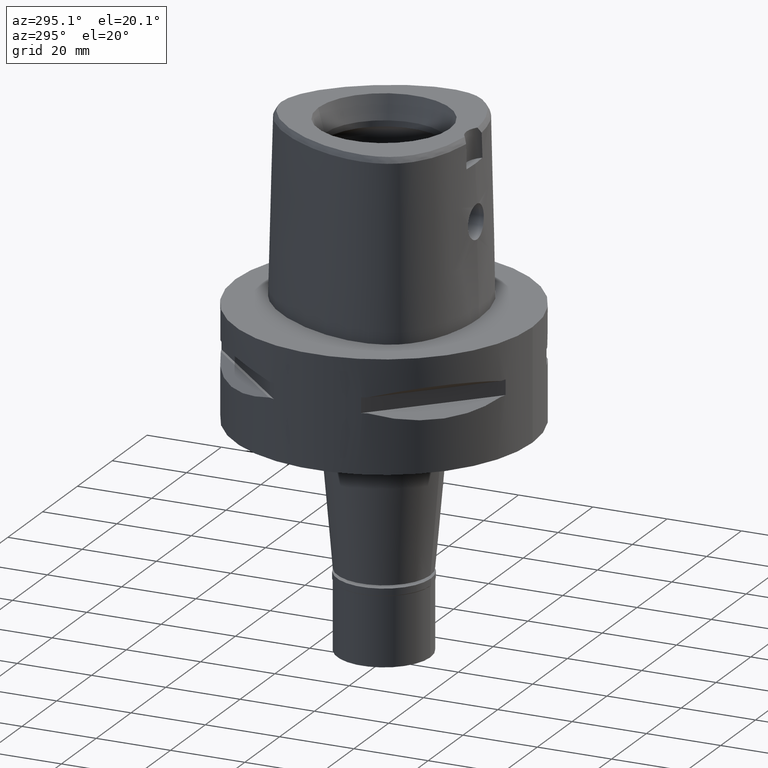
[diagram: clean part render]
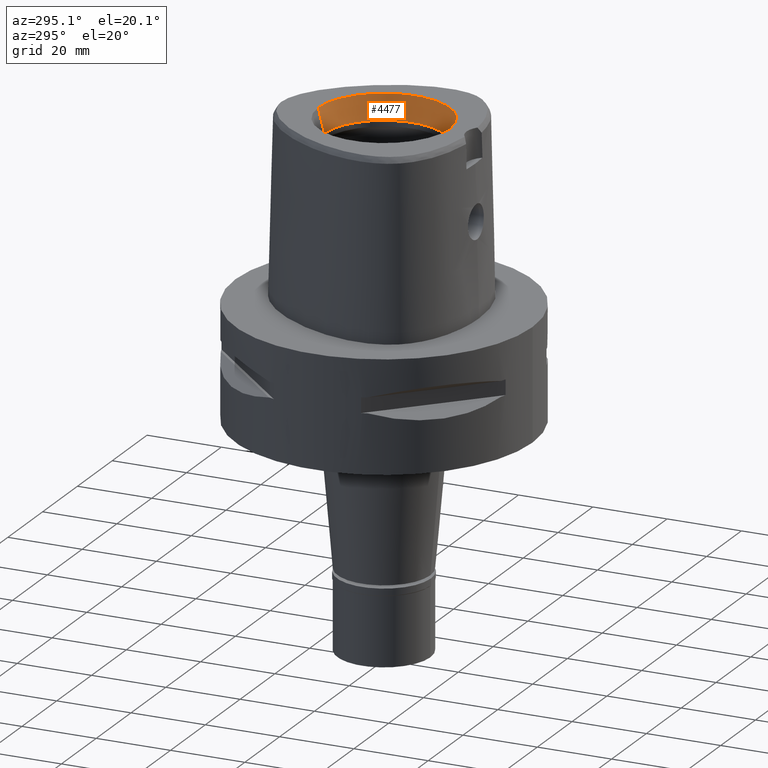
[diagram: same view with one face highlighted and labeled with its STEP entity id]
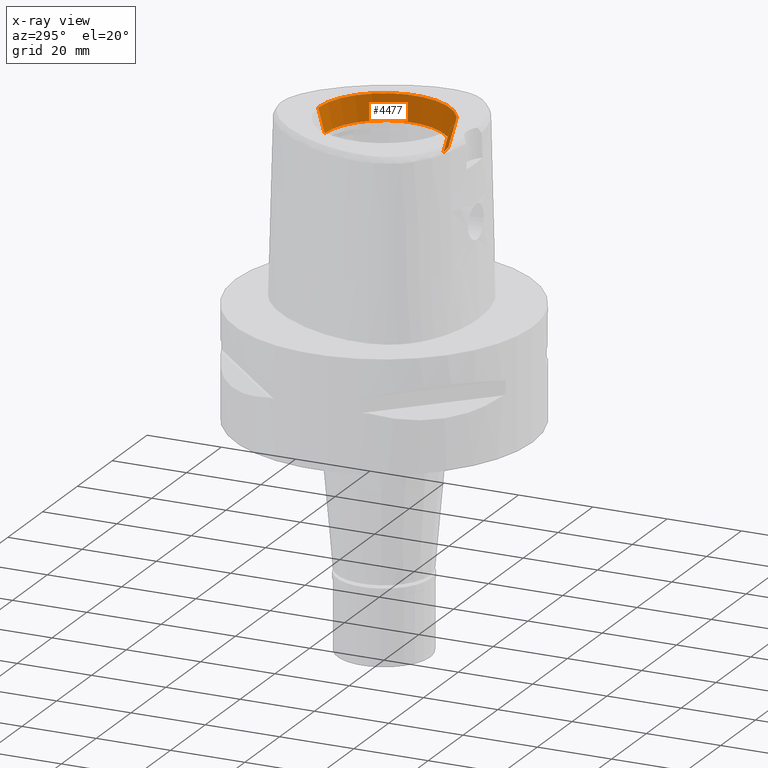
[diagram: x-ray of the same camera — body ghosted, the highlighted face saturated]
A machine part, auxiliary view. The second image highlights one B-rep face of the part: STEP entity #4477.
The next image is the same camera in x-ray: the body ghosted, the highlighted face saturated — about 0% of this face is hidden behind the body in this view.
In plain terms, the highlighted conical surface has half-angle 15 deg.
Its self-contained STEP definition (entity closure, byte-faithful):
#28 = DIRECTION ( 'NONE',  ( 0.0000000000000000000, 0.0000000000000000000, 1.000000000000000000 ) ) ;
#100 = CARTESIAN_POINT ( 'NONE',  ( 0.0000000000000000000, 17.71487483155999954, 48.00000000000000000 ) ) ;
#717 = CIRCLE ( 'NONE', #2476, 16.00000000000000000 ) ;
#1044 = EDGE_CURVE ( 'NONE', #1933, #3937, #2250, .T. ) ;
#1128 = CONICAL_SURFACE ( 'NONE', #3387, 16.85743741578000154, 0.2617993877991000029 ) ;
#1164 = CARTESIAN_POINT ( 'NONE',  ( 0.0000000000000000000, 0.0000000000000000000, 44.79999999999999716 ) ) ;
#1214 = DIRECTION ( 'NONE',  ( 0.0000000000000000000, 0.0000000000000000000, 1.000000000000000000 ) ) ;
#1337 = CARTESIAN_POINT ( 'NONE',  ( 0.0000000000000000000, -16.00000000000000000, 41.60000000000000142 ) ) ;
#1539 = VECTOR ( 'NONE', #3478, 1000.000000000000000 ) ;
#1564 = ORIENTED_EDGE ( 'NONE', *, *, #1044, .F. ) ;
#1606 = FACE_OUTER_BOUND ( 'NONE', #3978, .T. ) ;
#1626 = VECTOR ( 'NONE', #4486, 1000.000000000000000 ) ;
#1640 = DIRECTION ( 'NONE',  ( 0.0000000000000000000, -1.000000000000000000, 0.0000000000000000000 ) ) ;
#1661 = LINE ( 'NONE', #2480, #1626 ) ;
#1825 = CARTESIAN_POINT ( 'NONE',  ( 0.0000000000000000000, -17.71487483155999954, 48.00000000000000000 ) ) ;
#1933 = VERTEX_POINT ( 'NONE', #4591 ) ;
#2158 = EDGE_CURVE ( 'NONE', #3335, #3937, #3370, .T. ) ;
#2250 = LINE ( 'NONE', #3892, #1539 ) ;
#2476 = AXIS2_PLACEMENT_3D ( 'NONE', #3999, #28, #1640 ) ;
#2480 = CARTESIAN_POINT ( 'NONE',  ( 0.0000000000000000000, -16.00000000000000000, 41.60000000000000142 ) ) ;
#2491 = CARTESIAN_POINT ( 'NONE',  ( 0.0000000000000000000, 0.0000000000000000000, 48.00000000000000000 ) ) ;
#2509 = EDGE_CURVE ( 'NONE', #2637, #3335, #1661, .T. ) ;
#2626 = AXIS2_PLACEMENT_3D ( 'NONE', #2491, #3654, #3703 ) ;
#2637 = VERTEX_POINT ( 'NONE', #1337 ) ;
#2760 = DIRECTION ( 'NONE',  ( 0.0000000000000000000, 1.000000000000000000, 0.0000000000000000000 ) ) ;
#3335 = VERTEX_POINT ( 'NONE', #1825 ) ;
#3370 = CIRCLE ( 'NONE', #2626, 17.71487483155999954 ) ;
#3387 = AXIS2_PLACEMENT_3D ( 'NONE', #1164, #1214, #2760 ) ;
#3478 = DIRECTION ( 'NONE',  ( 0.0000000000000000000, 0.2588190451025869088, 0.9659258262890505486 ) ) ;
#3547 = ORIENTED_EDGE ( 'NONE', *, *, #4888, .F. ) ;
#3575 = ORIENTED_EDGE ( 'NONE', *, *, #2509, .T. ) ;
#3654 = DIRECTION ( 'NONE',  ( 0.0000000000000000000, 0.0000000000000000000, 1.000000000000000000 ) ) ;
#3703 = DIRECTION ( 'NONE',  ( 0.0000000000000000000, -1.000000000000000000, 0.0000000000000000000 ) ) ;
#3892 = CARTESIAN_POINT ( 'NONE',  ( 0.0000000000000000000, 16.00000000000000000, 41.60000000000000142 ) ) ;
#3937 = VERTEX_POINT ( 'NONE', #100 ) ;
#3978 = EDGE_LOOP ( 'NONE', ( #1564, #3547, #3575, #4572 ) ) ;
#3999 = CARTESIAN_POINT ( 'NONE',  ( 0.0000000000000000000, 0.0000000000000000000, 41.60000000000000142 ) ) ;
#4477 = ADVANCED_FACE ( 'NONE', ( #1606 ), #1128, .F. ) ;
#4486 = DIRECTION ( 'NONE',  ( 0.0000000000000000000, -0.2588190451025869088, 0.9659258262890505486 ) ) ;
#4572 = ORIENTED_EDGE ( 'NONE', *, *, #2158, .T. ) ;
#4591 = CARTESIAN_POINT ( 'NONE',  ( 0.0000000000000000000, 16.00000000000000000, 41.60000000000000142 ) ) ;
#4888 = EDGE_CURVE ( 'NONE', #2637, #1933, #717, .T. ) ;